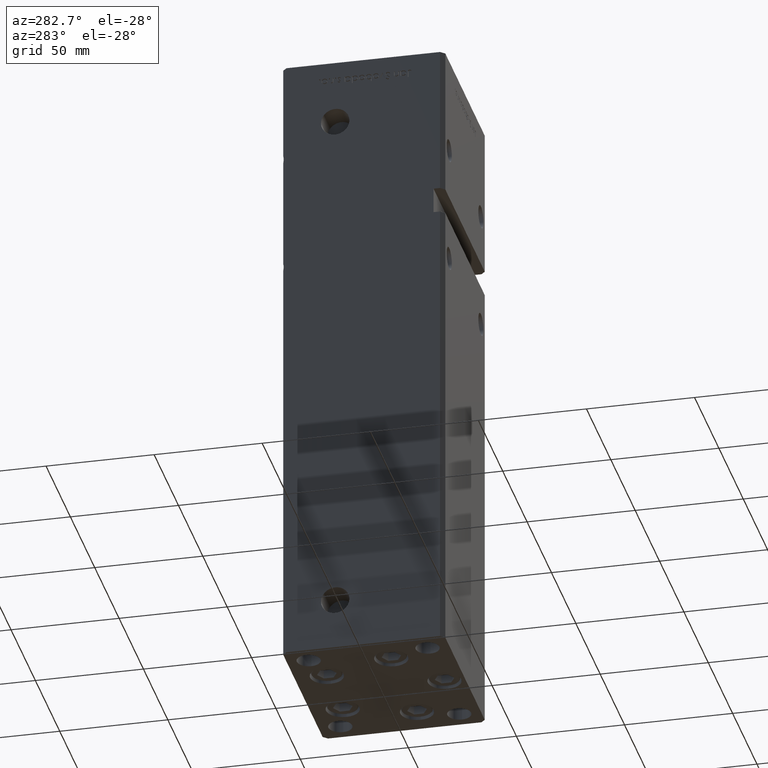
[diagram: clean part render]
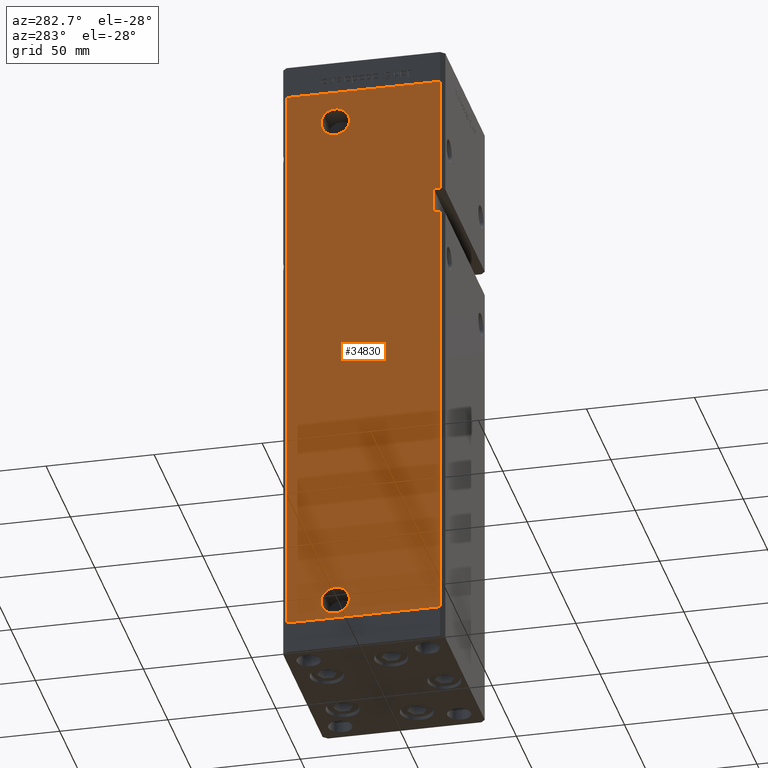
[diagram: same view with one face highlighted and labeled with its STEP entity id]
A machine part, auxiliary view. The second image highlights one B-rep face of the part: STEP entity #34830.
In plain terms, the highlighted planar face has unit normal (1, 0, 0).
Its self-contained STEP definition (entity closure, byte-faithful):
#444 = AXIS2_PLACEMENT_3D ( 'NONE', #49435, #33316, #5314 ) ;
#449 = LINE ( 'NONE', #16855, #41923 ) ;
#1186 = VERTEX_POINT ( 'NONE', #47824 ) ;
#1284 = FACE_BOUND ( 'NONE', #22040, .T. ) ;
#1293 = EDGE_LOOP ( 'NONE', ( #39097, #9984 ) ) ;
#2179 = DIRECTION ( 'NONE',  ( -0.000000000000000000, -0.000000000000000000, -1.000000000000000000 ) ) ;
#2712 = CARTESIAN_POINT ( 'NONE',  ( -42.49999999999998579, -35.50000000000000711, 268.5000000000000000 ) ) ;
#3085 = DIRECTION ( 'NONE',  ( -1.000000000000000000, -2.275047181608927644E-16, 0.000000000000000000 ) ) ;
#4358 = EDGE_CURVE ( 'NONE', #17621, #29167, #47795, .T. ) ;
#4741 = DIRECTION ( 'NONE',  ( -0.000000000000000000, -0.000000000000000000, -1.000000000000000000 ) ) ;
#4956 = AXIS2_PLACEMENT_3D ( 'NONE', #32786, #11785, #44867 ) ;
#5314 = DIRECTION ( 'NONE',  ( -3.909236002201255146E-16, 1.000000000000000000, 0.000000000000000000 ) ) ;
#5419 = CARTESIAN_POINT ( 'NONE',  ( -42.50000000000000000, 12.99999999999999467, 9.000000000000007105 ) ) ;
#5482 = CARTESIAN_POINT ( 'NONE',  ( -42.50000000000000000, 12.99999999999999467, 253.5000000000000000 ) ) ;
#5568 = VECTOR ( 'NONE', #38342, 1000.000000000000000 ) ;
#5895 = ORIENTED_EDGE ( 'NONE', *, *, #38887, .F. ) ;
#6202 = ORIENTED_EDGE ( 'NONE', *, *, #35252, .T. ) ;
#6741 = LINE ( 'NONE', #2712, #52825 ) ;
#7170 = CARTESIAN_POINT ( 'NONE',  ( -42.50000000000000000, 6.419999999999991935, 9.000000000000007105 ) ) ;
#7630 = ORIENTED_EDGE ( 'NONE', *, *, #4358, .T. ) ;
#8431 = EDGE_CURVE ( 'NONE', #1186, #23661, #13944, .T. ) ;
#9723 = DIRECTION ( 'NONE',  ( 0.000000000000000000, -1.000000000000000000, 0.000000000000000000 ) ) ;
#9984 = ORIENTED_EDGE ( 'NONE', *, *, #46251, .F. ) ;
#10292 = EDGE_CURVE ( 'NONE', #17621, #14020, #40831, .T. ) ;
#10351 = VECTOR ( 'NONE', #53187, 1000.000000000000000 ) ;
#10805 = CARTESIAN_POINT ( 'NONE',  ( -42.50000000000001421, 35.50000000000000711, 0.000000000000000000 ) ) ;
#10843 = DIRECTION ( 'NONE',  ( 0.000000000000000000, -1.000000000000000000, 0.000000000000000000 ) ) ;
#11021 = CARTESIAN_POINT ( 'NONE',  ( -42.50000000000000000, 19.57999999999999829, 9.000000000000007105 ) ) ;
#11785 = DIRECTION ( 'NONE',  ( -1.000000000000000000, -2.275047181608927644E-16, 0.000000000000000000 ) ) ;
#11989 = LINE ( 'NONE', #36985, #29680 ) ;
#13204 = AXIS2_PLACEMENT_3D ( 'NONE', #5419, #30202, #9723 ) ;
#13291 = DIRECTION ( 'NONE',  ( -1.000000000000000000, -2.275047181608927644E-16, 0.000000000000000000 ) ) ;
#13898 = CARTESIAN_POINT ( 'NONE',  ( -42.49999999999998579, -35.50000000000000711, 0.000000000000000000 ) ) ;
#13944 = CIRCLE ( 'NONE', #39707, 6.580000000000044480 ) ;
#14020 = VERTEX_POINT ( 'NONE', #38656 ) ;
#14487 = CARTESIAN_POINT ( 'NONE',  ( -42.50000000000000000, 6.419999999999950191, 253.5000000000000000 ) ) ;
#16301 = DIRECTION ( 'NONE',  ( -0.000000000000000000, -1.000000000000000000, -0.000000000000000000 ) ) ;
#16855 = CARTESIAN_POINT ( 'NONE',  ( -42.49999999999998579, -35.50000000000000711, 268.5000000000000000 ) ) ;
#17176 = PLANE ( 'NONE',  #444 ) ;
#17519 = CIRCLE ( 'NONE', #13204, 6.580000000000002736 ) ;
#17621 = VERTEX_POINT ( 'NONE', #40742 ) ;
#17624 = VECTOR ( 'NONE', #31694, 1000.000000000000000 ) ;
#18585 = CARTESIAN_POINT ( 'NONE',  ( -42.49999999999998579, -35.50000000000001421, 214.0000000000000284 ) ) ;
#19409 = LINE ( 'NONE', #10805, #27939 ) ;
#19488 = DIRECTION ( 'NONE',  ( 0.000000000000000000, -1.000000000000000000, 0.000000000000000000 ) ) ;
#19931 = VERTEX_POINT ( 'NONE', #11021 ) ;
#21201 = ORIENTED_EDGE ( 'NONE', *, *, #26026, .F. ) ;
#22040 = EDGE_LOOP ( 'NONE', ( #25698, #32509 ) ) ;
#22634 = VERTEX_POINT ( 'NONE', #13898 ) ;
#23661 = VERTEX_POINT ( 'NONE', #14487 ) ;
#24978 = FACE_OUTER_BOUND ( 'NONE', #36811, .T. ) ;
#25046 = VERTEX_POINT ( 'NONE', #7170 ) ;
#25698 = ORIENTED_EDGE ( 'NONE', *, *, #51644, .F. ) ;
#25998 = LINE ( 'NONE', #31299, #5568 ) ;
#26026 = EDGE_CURVE ( 'NONE', #14020, #36603, #449, .T. ) ;
#26565 = CIRCLE ( 'NONE', #31738, 6.580000000000044480 ) ;
#27859 = ORIENTED_EDGE ( 'NONE', *, *, #36601, .F. ) ;
#27939 = VECTOR ( 'NONE', #38314, 1000.000000000000000 ) ;
#29167 = VERTEX_POINT ( 'NONE', #40012 ) ;
#29466 = CARTESIAN_POINT ( 'NONE',  ( -42.49999999999998579, -32.50000000000000711, 202.0000000000000000 ) ) ;
#29680 = VECTOR ( 'NONE', #16301, 1000.000000000000000 ) ;
#30202 = DIRECTION ( 'NONE',  ( -1.000000000000000000, -2.275047181608927644E-16, 0.000000000000000000 ) ) ;
#31299 = CARTESIAN_POINT ( 'NONE',  ( -42.49999999999998579, -32.50000000000000711, 214.0000000000000284 ) ) ;
#31694 = DIRECTION ( 'NONE',  ( -0.000000000000000000, -0.000000000000000000, -1.000000000000000000 ) ) ;
#31738 = AXIS2_PLACEMENT_3D ( 'NONE', #43965, #3085, #19488 ) ;
#32187 = CARTESIAN_POINT ( 'NONE',  ( -42.49999999999998579, -32.50000000000000711, 214.0000000000000284 ) ) ;
#32509 = ORIENTED_EDGE ( 'NONE', *, *, #8431, .F. ) ;
#32786 = CARTESIAN_POINT ( 'NONE',  ( -42.50000000000000000, 12.99999999999999467, 9.000000000000007105 ) ) ;
#33316 = DIRECTION ( 'NONE',  ( 1.000000000000000000, 3.909236002201255146E-16, -0.000000000000000000 ) ) ;
#33848 = FACE_BOUND ( 'NONE', #1293, .T. ) ;
#34830 = ADVANCED_FACE ( 'NONE', ( #24978, #33848, #1284 ), #17176, .F. ) ;
#35252 = EDGE_CURVE ( 'NONE', #29167, #22634, #19409, .T. ) ;
#35663 = VERTEX_POINT ( 'NONE', #29466 ) ;
#35715 = CARTESIAN_POINT ( 'NONE',  ( -42.50000000000001421, 35.50000000000000711, 268.5000000000000000 ) ) ;
#36236 = EDGE_CURVE ( 'NONE', #35663, #44967, #11989, .T. ) ;
#36274 = CARTESIAN_POINT ( 'NONE',  ( -42.50000000000001421, 35.50000000000000711, 268.5000000000000000 ) ) ;
#36593 = EDGE_CURVE ( 'NONE', #25046, #19931, #17519, .T. ) ;
#36601 = EDGE_CURVE ( 'NONE', #44967, #22634, #6741, .T. ) ;
#36603 = VERTEX_POINT ( 'NONE', #18585 ) ;
#36811 = EDGE_LOOP ( 'NONE', ( #27859, #45652, #5895, #50146, #21201, #48009, #7630, #6202 ) ) ;
#36985 = CARTESIAN_POINT ( 'NONE',  ( -42.49999999999998579, -32.50000000000000711, 202.0000000000000000 ) ) ;
#37272 = CARTESIAN_POINT ( 'NONE',  ( -42.49999999999998579, -35.49999999999996447, 202.0000000000000000 ) ) ;
#38314 = DIRECTION ( 'NONE',  ( 3.909236002201255146E-16, -1.000000000000000000, 0.000000000000000000 ) ) ;
#38342 = DIRECTION ( 'NONE',  ( -5.782411586589351722E-16, 0.000000000000000000, -1.000000000000000000 ) ) ;
#38524 = CARTESIAN_POINT ( 'NONE',  ( -42.49999999999998579, -32.50000000000000711, 214.0000000000000284 ) ) ;
#38656 = CARTESIAN_POINT ( 'NONE',  ( -42.49999999999998579, -35.50000000000000711, 268.5000000000000000 ) ) ;
#38887 = EDGE_CURVE ( 'NONE', #49174, #35663, #25998, .T. ) ;
#39097 = ORIENTED_EDGE ( 'NONE', *, *, #36593, .F. ) ;
#39253 = CIRCLE ( 'NONE', #4956, 6.580000000000002736 ) ;
#39707 = AXIS2_PLACEMENT_3D ( 'NONE', #5482, #13291, #10843 ) ;
#39914 = EDGE_CURVE ( 'NONE', #49174, #36603, #44261, .T. ) ;
#40012 = CARTESIAN_POINT ( 'NONE',  ( -42.50000000000001421, 35.50000000000000711, 0.000000000000000000 ) ) ;
#40492 = DIRECTION ( 'NONE',  ( -0.000000000000000000, -1.000000000000000000, -0.000000000000000000 ) ) ;
#40742 = CARTESIAN_POINT ( 'NONE',  ( -42.50000000000001421, 35.50000000000000711, 268.5000000000000000 ) ) ;
#40831 = LINE ( 'NONE', #36274, #10351 ) ;
#41923 = VECTOR ( 'NONE', #4741, 1000.000000000000000 ) ;
#43374 = VECTOR ( 'NONE', #40492, 1000.000000000000000 ) ;
#43965 = CARTESIAN_POINT ( 'NONE',  ( -42.50000000000000000, 12.99999999999999467, 253.5000000000000000 ) ) ;
#44261 = LINE ( 'NONE', #32187, #43374 ) ;
#44867 = DIRECTION ( 'NONE',  ( 0.000000000000000000, -1.000000000000000000, 0.000000000000000000 ) ) ;
#44967 = VERTEX_POINT ( 'NONE', #37272 ) ;
#45652 = ORIENTED_EDGE ( 'NONE', *, *, #36236, .F. ) ;
#46251 = EDGE_CURVE ( 'NONE', #19931, #25046, #39253, .T. ) ;
#47795 = LINE ( 'NONE', #35715, #17624 ) ;
#47824 = CARTESIAN_POINT ( 'NONE',  ( -42.50000000000000000, 19.58000000000003737, 253.5000000000000000 ) ) ;
#48009 = ORIENTED_EDGE ( 'NONE', *, *, #10292, .F. ) ;
#49174 = VERTEX_POINT ( 'NONE', #38524 ) ;
#49435 = CARTESIAN_POINT ( 'NONE',  ( -42.50000000000001421, 35.50000000000000711, 268.5000000000000000 ) ) ;
#50146 = ORIENTED_EDGE ( 'NONE', *, *, #39914, .T. ) ;
#51644 = EDGE_CURVE ( 'NONE', #23661, #1186, #26565, .T. ) ;
#52825 = VECTOR ( 'NONE', #2179, 1000.000000000000000 ) ;
#53187 = DIRECTION ( 'NONE',  ( 3.909236002201255146E-16, -1.000000000000000000, 0.000000000000000000 ) ) ;